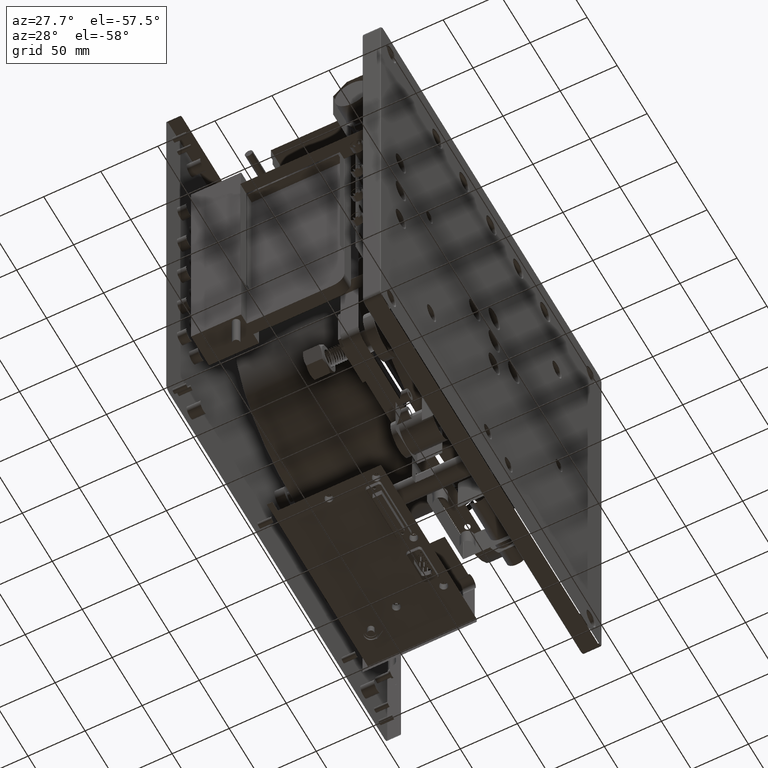
[diagram: clean part render]
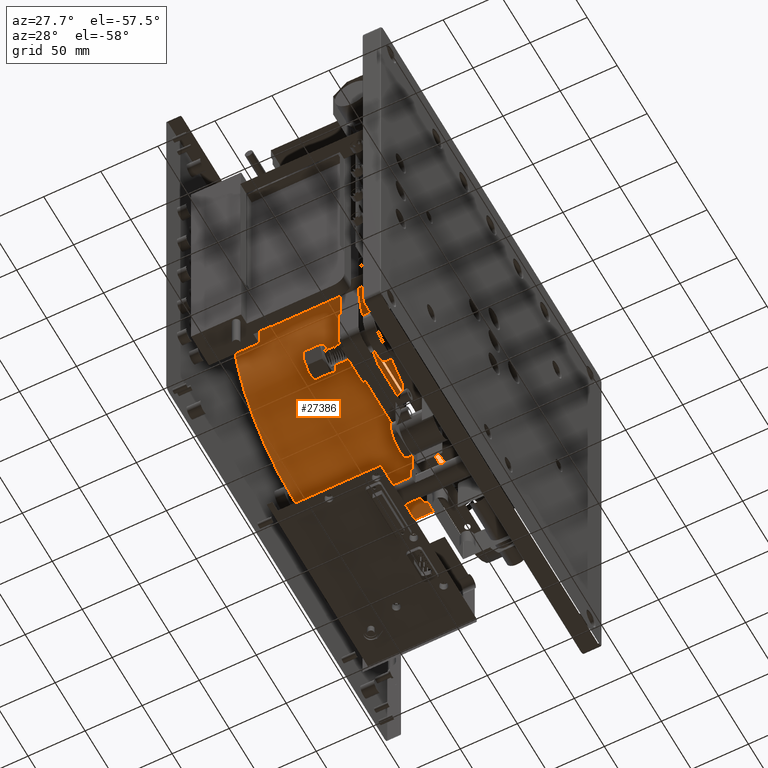
[diagram: same view with one face highlighted and labeled with its STEP entity id]
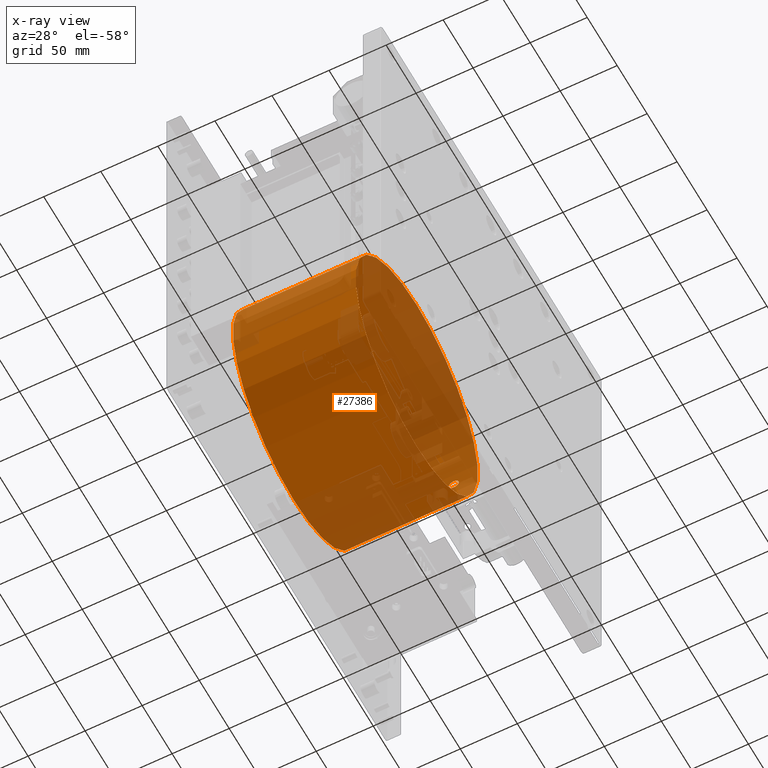
[diagram: x-ray of the same camera — body ghosted, the highlighted face saturated]
A machine part, auxiliary view. The second image highlights one B-rep face of the part: STEP entity #27386.
The next image is the same camera in x-ray: the body ghosted, the highlighted face saturated — about 52% of this face is hidden behind the body in this view.
In plain terms, the highlighted cylindrical surface (bore or boss wall) has radius 102 mm, axis along (1, 0, 0).
Its self-contained STEP definition (entity closure, byte-faithful):
#840 = CARTESIAN_POINT ( 'NONE',  ( -96.93778445557744305, 96.50979394673836964, 219.4217920812900786 ) ) ;
#1936 = DIRECTION ( 'NONE',  ( 0.000000000000000000, 0.000000000000000000, -1.000000000000000000 ) ) ;
#2166 = FACE_OUTER_BOUND ( 'NONE', #26450, .T. ) ;
#2718 = EDGE_CURVE ( 'NONE', #18831, #18831, #18997, .T. ) ;
#2732 = CARTESIAN_POINT ( 'NONE',  ( -101.8881872982900774, 96.41734053508648117, 215.6287179609222164 ) ) ;
#3194 = CARTESIAN_POINT ( 'NONE',  ( -99.89438878386931719, 96.42556430452253835, 215.8237749492748776 ) ) ;
#3875 = CARTESIAN_POINT ( 'NONE',  ( -105.5672194239924124, 96.50498963838684574, 221.1462660031336327 ) ) ;
#4101 = CARTESIAN_POINT ( 'NONE',  ( -103.5129990788189929, 96.43963195246918474, 223.8192722838662405 ) ) ;
#4557 = CARTESIAN_POINT ( 'NONE',  ( -103.9927817905382170, 96.45113285935953229, 223.4988806644220176 ) ) ;
#6225 = DIRECTION ( 'NONE',  ( 0.000000000000000000, 0.000000000000000000, -1.000000000000000000 ) ) ;
#7152 = CARTESIAN_POINT ( 'NONE',  ( -97.13441187467587667, 96.50151296385485011, 221.4188649740074766 ) ) ;
#8077 = CARTESIAN_POINT ( 'NONE',  ( -101.5963472585146263, 96.41608079686560018, 224.4001889597803086 ) ) ;
#8434 = EDGE_CURVE ( 'NONE', #42206, #42206, #9178, .T. ) ;
#8971 = CARTESIAN_POINT ( 'NONE',  ( -99.35751798316123029, 96.43442919566885507, 223.9539859625965903 ) ) ;
#9178 = CIRCLE ( 'NONE', #11384, 102.0000000000000142 ) ;
#9663 = DIRECTION ( 'NONE',  ( 1.000000000000000000, 0.000000000000000000, 0.000000000000000000 ) ) ;
#9783 = CARTESIAN_POINT ( 'NONE',  ( -104.6281073396620940, 96.46991299225825856, 217.0966816814899403 ) ) ;
#10002 = CARTESIAN_POINT ( 'NONE',  ( -105.5693277098190634, 96.50507745337006327, 218.8616611858019496 ) ) ;
#10902 = CARTESIAN_POINT ( 'NONE',  ( -105.4841701181661193, 96.50151204395794480, 221.4189374348476349 ) ) ;
#11362 = CARTESIAN_POINT ( 'NONE',  ( -97.48910227468921619, 96.48754275890193810, 222.2022530873267101 ) ) ;
#11384 = AXIS2_PLACEMENT_3D ( 'NONE', #27977, #38742, #6225 ) ;
#11582 = CARTESIAN_POINT ( 'NONE',  ( -105.7092945761704215, 96.51103509447241890, 220.0015668082338607 ) ) ;
#11830 = CARTESIAN_POINT ( 'NONE',  ( -97.13524131410824225, 96.50147777066092658, 218.5784515030280204 ) ) ;
#12033 = CARTESIAN_POINT ( 'NONE',  ( -80.30929485513502186, -5.488964893493830211, 118.0000000000000142 ) ) ;
#13160 = FACE_BOUND ( 'NONE', #35315, .T. ) ;
#13389 = FACE_OUTER_BOUND ( 'NONE', #18813, .T. ) ;
#13505 = CARTESIAN_POINT ( 'NONE',  ( -99.36221192629176358, 96.43434089021458533, 216.0437574078050034 ) ) ;
#13734 = CARTESIAN_POINT ( 'NONE',  ( -104.2190512345101325, 96.45741725612536754, 216.6868136810448107 ) ) ;
#14419 = CARTESIAN_POINT ( 'NONE',  ( -102.7229764955895490, 96.42554371734574659, 224.1767427091921832 ) ) ;
#14611 = EDGE_CURVE ( 'NONE', #19678, #40550, #26454, .T. ) ;
#14655 = CARTESIAN_POINT ( 'NONE',  ( -96.90929485513505881, 96.51103510650619910, 219.7094720311963556 ) ) ;
#15334 = CARTESIAN_POINT ( 'NONE',  ( -100.7329328753784949, 96.41732671182121805, 224.3716014164791375 ) ) ;
#17026 = CARTESIAN_POINT ( 'NONE',  ( -100.7390459482315919, 96.41729014282537946, 215.6275475843054608 ) ) ;
#18388 = CARTESIAN_POINT ( 'NONE',  ( -104.8053340535757769, 96.47591380172296738, 222.6872623990370528 ) ) ;
#18399 = CARTESIAN_POINT ( 'NONE',  ( -97.05174285734690898, 96.50497397346472894, 218.8521482028503726 ) ) ;
#18813 = EDGE_LOOP ( 'NONE', ( #25727 ) ) ;
#18831 = VERTEX_POINT ( 'NONE', #12033 ) ;
#18997 = CIRCLE ( 'NONE', #43645, 102.0000000000000142 ) ;
#19036 = ORIENTED_EDGE ( 'NONE', *, *, #44153, .T. ) ;
#19678 = VERTEX_POINT ( 'NONE', #21408 ) ;
#19733 = CARTESIAN_POINT ( 'NONE',  ( -98.40203754716618789, 96.45734755383467984, 223.3152541285499524 ) ) ;
#20527 = CARTESIAN_POINT ( 'NONE',  ( -103.2651635629746778, 96.43450682036127830, 216.0480037143238121 ) ) ;
#20992 = CARTESIAN_POINT ( 'NONE',  ( -101.0251066320418545, 96.41607494751626461, 215.5996755677493866 ) ) ;
#21204 = CARTESIAN_POINT ( 'NONE',  ( -97.05013082589115925, 96.50504103378600007, 221.1416406035770308 ) ) ;
#21408 = CARTESIAN_POINT ( 'NONE',  ( -105.7092945761704215, 96.51103509447241890, 220.0015668082338607 ) ) ;
#21436 = CARTESIAN_POINT ( 'NONE',  ( -97.35487736515129598, 96.49272575785076356, 221.9507750455282178 ) ) ;
#21907 = CARTESIAN_POINT ( 'NONE',  ( -96.90929485513507302, 96.51103510650618489, 220.0000000000000284 ) ) ;
#22119 = DIRECTION ( 'NONE',  ( 0.000000000000000000, 0.000000000000000000, -1.000000000000000000 ) ) ;
#22354 = CARTESIAN_POINT ( 'NONE',  ( -97.99458501867671600, 96.46978114264527449, 222.9078580232330467 ) ) ;
#23251 = CARTESIAN_POINT ( 'NONE',  ( -100.1680007643125663, 96.42208903973161682, 224.2591376957407761 ) ) ;
#23932 = CARTESIAN_POINT ( 'NONE',  ( -188.3092948551349934, -5.488964893493830211, 220.0000000000000284 ) ) ;
#24053 = CARTESIAN_POINT ( 'NONE',  ( -103.9949342935326939, 96.45119159382714713, 216.5028375289082589 ) ) ;
#24967 = CARTESIAN_POINT ( 'NONE',  ( -105.7093971703281170, 96.51103952010248577, 219.7134560774687486 ) ) ;
#25727 = ORIENTED_EDGE ( 'NONE', *, *, #8434, .T. ) ;
#25887 = CARTESIAN_POINT ( 'NONE',  ( -98.40429807421546116, 96.45728354671742011, 216.6827928511439438 ) ) ;
#26109 = CARTESIAN_POINT ( 'NONE',  ( -80.30929485513502186, -5.488964893493830211, 220.0000000000000284 ) ) ;
#26450 = EDGE_LOOP ( 'NONE', ( #33880 ) ) ;
#26454 = B_SPLINE_CURVE_WITH_KNOTS ( 'NONE', 3,
 ( #31527, #24967, #35735, #10002, #31070, #45336, #27568, #41844, #9783, #13734, #24053, #28013, #20527, #35274, #34816, #2732, #42285, #20992, #17026, #31297, #3194, #13505, #27788, #42061, #25887, #32907, #43205, #29384, #39926, #11830, #18399, #840, #14655, #21907 ),
 .UNSPECIFIED., .F., .F.,
 ( 4, 2, 2, 2, 2, 2, 2, 2, 2, 2, 2, 2, 2, 2, 2, 2, 4 ),
 ( 0.000000000000000000, 0.06250000000000000000, 0.1250000000000000000, 0.1875000000000000000, 0.2500000000000000000, 0.3125000000000000000, 0.3750000000000000000, 0.4375000000000000000, 0.5000000000000000000, 0.5625000000000000000, 0.6250000000000000000, 0.6875000000000000000, 0.7500000000000000000, 0.8125000000000000000, 0.8750000000000000000, 0.9375000000000000000, 1.000000000000000000 ),
 .UNSPECIFIED. ) ;
#27386 = ADVANCED_FACE ( 'NONE', ( #13389, #2166, #13160 ), #34473, .T. ) ;
#27568 = CARTESIAN_POINT ( 'NONE',  ( -105.1290772885611489, 96.48752862992758139, 217.7972121803888399 ) ) ;
#27788 = CARTESIAN_POINT ( 'NONE',  ( -99.11048027442487296, 96.43952379920844464, 216.1778272839516148 ) ) ;
#27977 = CARTESIAN_POINT ( 'NONE',  ( -187.8092948551350787, -5.488964893493830211, 220.0000000000000284 ) ) ;
#28013 = CARTESIAN_POINT ( 'NONE',  ( -103.5164147136379427, 96.43970677478486664, 216.1827310876832371 ) ) ;
#29373 = CARTESIAN_POINT ( 'NONE',  ( -102.4498978654748811, 96.42208035751485795, 224.2593440838695358 ) ) ;
#29384 = CARTESIAN_POINT ( 'NONE',  ( -97.49317978659033201, 96.48738913174157972, 217.7907055959980767 ) ) ;
#31070 = CARTESIAN_POINT ( 'NONE',  ( -105.4858218623108002, 96.50158008190672376, 218.5857640753813769 ) ) ;
#31297 = CARTESIAN_POINT ( 'NONE',  ( -100.1715428934080592, 96.42204446888125347, 215.7397973760930654 ) ) ;
#31527 = CARTESIAN_POINT ( 'NONE',  ( -105.7092945761704215, 96.51103509447241890, 220.0015668082338607 ) ) ;
#31990 = AXIS2_PLACEMENT_3D ( 'NONE', #23932, #9663, #1936 ) ;
#32439 = CARTESIAN_POINT ( 'NONE',  ( -103.2578948630486906, 96.43436630438064583, 223.9556039458052510 ) ) ;
#32667 = CARTESIAN_POINT ( 'NONE',  ( -105.7091914080006063, 96.51103064408108878, 220.2912895125213879 ) ) ;
#32897 = CARTESIAN_POINT ( 'NONE',  ( -98.62292784310869820, 96.45120828681015723, 223.4967067258698989 ) ) ;
#32907 = CARTESIAN_POINT ( 'NONE',  ( -97.99671192271890163, 96.46971131867231009, 217.0897114637259335 ) ) ;
#33353 = DIRECTION ( 'NONE',  ( -1.000000000000000000, -0.000000000000000000, -0.000000000000000000 ) ) ;
#33880 = ORIENTED_EDGE ( 'NONE', *, *, #2718, .T. ) ;
#34473 = CYLINDRICAL_SURFACE ( 'NONE', #31990, 102.0000000000000142 ) ;
#34816 = CARTESIAN_POINT ( 'NONE',  ( -102.4534915569407616, 96.42212107571972979, 215.7416259741748661 ) ) ;
#35040 = CARTESIAN_POINT ( 'NONE',  ( -96.90929485513507302, 96.51103510650618489, 220.0000000000000284 ) ) ;
#35274 = CARTESIAN_POINT ( 'NONE',  ( -102.7305970743021106, 96.42564934194130899, 215.8258215072347355 ) ) ;
#35315 = EDGE_LOOP ( 'NONE', ( #19036, #37851 ) ) ;
#35723 = CARTESIAN_POINT ( 'NONE',  ( -96.93729880960836454, 96.50981563069952074, 220.5738988928164872 ) ) ;
#35735 = CARTESIAN_POINT ( 'NONE',  ( -105.6816630526242875, 96.50983172200777460, 219.4290547317716857 ) ) ;
#35954 = CARTESIAN_POINT ( 'NONE',  ( -101.0175444239508522, 96.41609716861196944, 224.3998097861590111 ) ) ;
#36174 = CARTESIAN_POINT ( 'NONE',  ( -99.89146626104171389, 96.42560176312058218, 224.1753288303644354 ) ) ;
#36396 = CARTESIAN_POINT ( 'NONE',  ( -105.6807557439310301, 96.50979194779385750, 220.5781778559813517 ) ) ;
#36628 = CARTESIAN_POINT ( 'NONE',  ( -101.8853014870998663, 96.41732657802474193, 224.3716032184808000 ) ) ;
#37851 = ORIENTED_EDGE ( 'NONE', *, *, #14611, .T. ) ;
#38742 = DIRECTION ( 'NONE',  ( 1.000000000000000000, 0.000000000000000000, 0.000000000000000000 ) ) ;
#39475 = CARTESIAN_POINT ( 'NONE',  ( -99.10355017742715233, 96.43967454055196242, 223.8181578125317799 ) ) ;
#39704 = CARTESIAN_POINT ( 'NONE',  ( -104.2147937439339245, 96.45729699904524068, 223.3168273184532779 ) ) ;
#39926 = CARTESIAN_POINT ( 'NONE',  ( -97.35696610161789977, 96.49264466813330898, 218.0448769401097877 ) ) ;
#40550 = VERTEX_POINT ( 'NONE', #41326 ) ;
#41326 = CARTESIAN_POINT ( 'NONE',  ( -96.90929485513507302, 96.51103510650618489, 220.0000000000000284 ) ) ;
#41844 = CARTESIAN_POINT ( 'NONE',  ( -104.8090986629272692, 96.47604383984132426, 217.3177435764785059 ) ) ;
#42061 = CARTESIAN_POINT ( 'NONE',  ( -98.62853483889877282, 96.45105856869056993, 216.4989390209630642 ) ) ;
#42206 = VERTEX_POINT ( 'NONE', #42898 ) ;
#42285 = CARTESIAN_POINT ( 'NONE',  ( -101.6023642888993237, 96.41610315731757908, 215.6003289138373020 ) ) ;
#42898 = CARTESIAN_POINT ( 'NONE',  ( -187.8092948551350787, -5.488964893493830211, 118.0000000000000142 ) ) ;
#42959 = CARTESIAN_POINT ( 'NONE',  ( -97.81064803381107708, 96.47600290770448339, 222.6839100097366213 ) ) ;
#43194 = CARTESIAN_POINT ( 'NONE',  ( -105.1271554042005931, 96.48745465545717082, 222.2062915736322282 ) ) ;
#43205 = CARTESIAN_POINT ( 'NONE',  ( -97.81524061215128540, 96.47584557574752750, 217.3101695192101772 ) ) ;
#43422 = CARTESIAN_POINT ( 'NONE',  ( -105.2636319662441338, 96.49272316669295435, 221.9509151103128488 ) ) ;
#43645 = AXIS2_PLACEMENT_3D ( 'NONE', #26109, #33353, #22119 ) ;
#43879 = CARTESIAN_POINT ( 'NONE',  ( -104.6232315102312640, 96.46975446377543051, 222.9088149388028910 ) ) ;
#44153 = EDGE_CURVE ( 'NONE', #40550, #19678, #45877, .T. ) ;
#45336 = CARTESIAN_POINT ( 'NONE',  ( -105.2650060530908149, 96.49277574418842107, 218.0516919806683234 ) ) ;
#45777 = CARTESIAN_POINT ( 'NONE',  ( -96.90929485513508723, 96.51103510650617068, 220.2886568532290141 ) ) ;
#45877 = B_SPLINE_CURVE_WITH_KNOTS ( 'NONE', 3,
 ( #35040, #45777, #35723, #21204, #7152, #21436, #11362, #42959, #22354, #19733, #32897, #39475, #8971, #36174, #23251, #15334, #35954, #8077, #36628, #29373, #14419, #32439, #4101, #4557, #39704, #43879, #18388, #43194, #43422, #10902, #3875, #36396, #32667, #11582 ),
 .UNSPECIFIED., .F., .F.,
 ( 4, 2, 2, 2, 2, 2, 2, 2, 2, 2, 2, 2, 2, 2, 2, 2, 4 ),
 ( 0.000000000000000000, 0.06250000000000000000, 0.1250000000000000000, 0.1875000000000000000, 0.2500000000000000000, 0.3125000000000000000, 0.3750000000000000000, 0.4375000000000000000, 0.5000000000000000000, 0.5625000000000000000, 0.6250000000000000000, 0.6875000000000000000, 0.7500000000000000000, 0.8125000000000000000, 0.8750000000000000000, 0.9375000000000000000, 1.000000000000000000 ),
 .UNSPECIFIED. ) ;